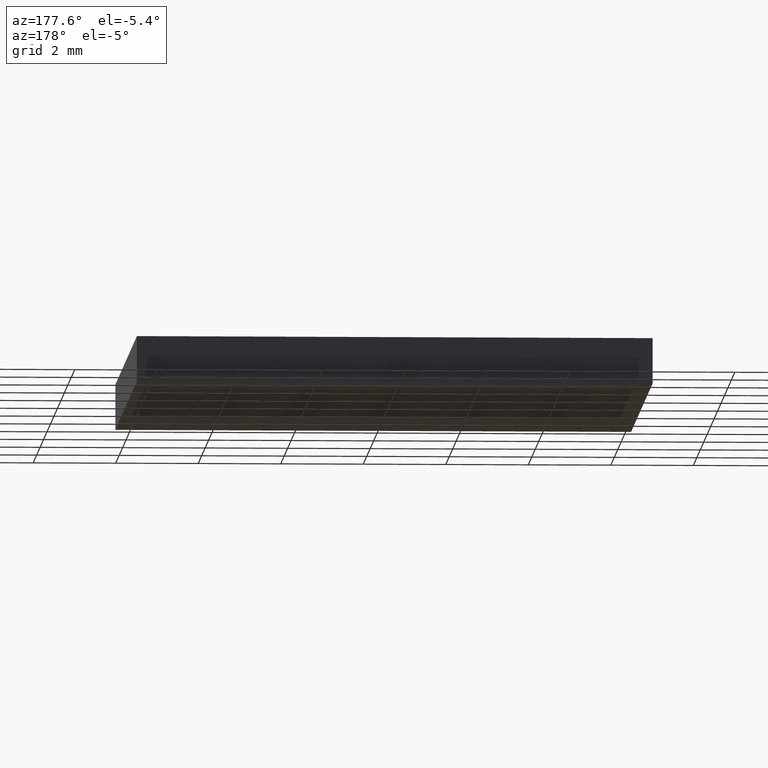
[diagram: clean part render]
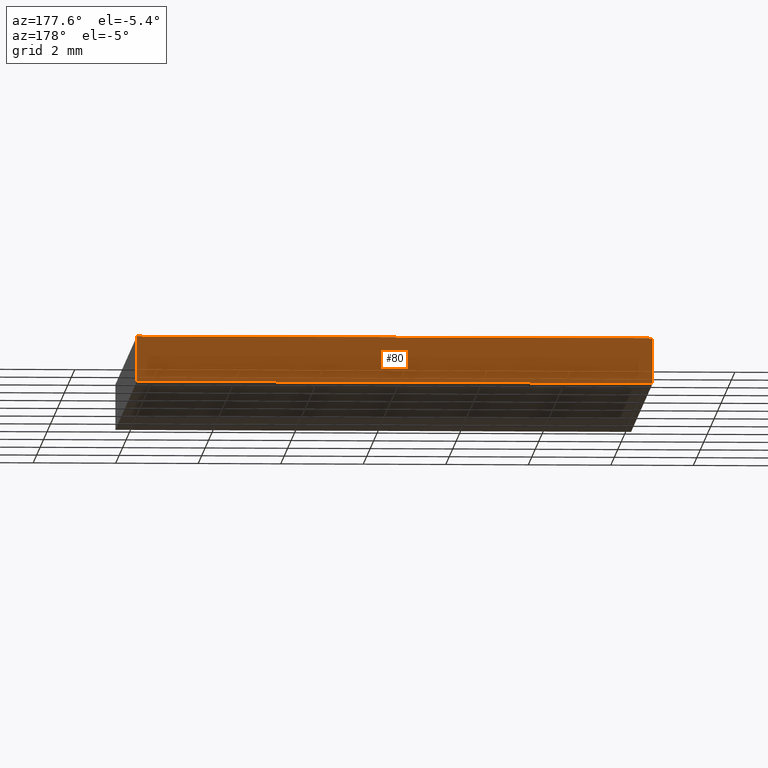
[diagram: same view with one face highlighted and labeled with its STEP entity id]
A machine part, auxiliary view. The second image highlights one B-rep face of the part: STEP entity #80.
In plain terms, the highlighted planar face has unit normal (0, -1, 0).
Its self-contained STEP definition (entity closure, byte-faithful):
#3 = AXIS2_PLACEMENT_3D ( 'NONE', #179, #279, #209 ) ;
#25 = LINE ( 'NONE', #102, #214 ) ;
#36 = CARTESIAN_POINT ( 'NONE',  ( -6.249999999999998200, 6.250000000000000900, 0.0000000000000000000 ) ) ;
#45 = EDGE_CURVE ( 'NONE', #91, #224, #117, .T. ) ;
#51 = CARTESIAN_POINT ( 'NONE',  ( -6.249999999999998200, 6.250000000000000900, 1.100000000000000100 ) ) ;
#57 = DIRECTION ( 'NONE',  ( -0.0000000000000000000, -0.0000000000000000000, -1.000000000000000000 ) ) ;
#62 = VECTOR ( 'NONE', #57, 1000.000000000000000 ) ;
#63 = EDGE_CURVE ( 'NONE', #224, #133, #25, .T. ) ;
#70 = VERTEX_POINT ( 'NONE', #51 ) ;
#80 = ADVANCED_FACE ( 'NONE', ( #136 ), #204, .F. ) ;
#82 = ORIENTED_EDGE ( 'NONE', *, *, #45, .T. ) ;
#87 = CARTESIAN_POINT ( 'NONE',  ( -6.249999999999998200, 6.250000000000000900, 1.100000000000000100 ) ) ;
#88 = VECTOR ( 'NONE', #150, 1000.000000000000000 ) ;
#91 = VERTEX_POINT ( 'NONE', #127 ) ;
#102 = CARTESIAN_POINT ( 'NONE',  ( -6.249999999999998200, 6.250000000000000900, 0.0000000000000000000 ) ) ;
#117 = LINE ( 'NONE', #202, #88 ) ;
#127 = CARTESIAN_POINT ( 'NONE',  ( 6.250000000000001800, 6.250000000000000900, 1.100000000000000100 ) ) ;
#133 = VERTEX_POINT ( 'NONE', #36 ) ;
#136 = FACE_OUTER_BOUND ( 'NONE', #313, .T. ) ;
#150 = DIRECTION ( 'NONE',  ( -0.0000000000000000000, -0.0000000000000000000, -1.000000000000000000 ) ) ;
#155 = VECTOR ( 'NONE', #282, 1000.000000000000000 ) ;
#157 = CARTESIAN_POINT ( 'NONE',  ( -6.249999999999998200, 6.250000000000000900, 1.100000000000000100 ) ) ;
#161 = ORIENTED_EDGE ( 'NONE', *, *, #238, .F. ) ;
#168 = LINE ( 'NONE', #87, #155 ) ;
#177 = EDGE_CURVE ( 'NONE', #91, #70, #168, .T. ) ;
#179 = CARTESIAN_POINT ( 'NONE',  ( -6.249999999999998200, 6.250000000000000900, 1.100000000000000100 ) ) ;
#180 = CARTESIAN_POINT ( 'NONE',  ( 6.250000000000001800, 6.250000000000000900, 0.0000000000000000000 ) ) ;
#202 = CARTESIAN_POINT ( 'NONE',  ( 6.250000000000001800, 6.250000000000000900, 1.100000000000000100 ) ) ;
#204 = PLANE ( 'NONE',  #3 ) ;
#205 = DIRECTION ( 'NONE',  ( -1.000000000000000000, -0.0000000000000000000, -0.0000000000000000000 ) ) ;
#206 = LINE ( 'NONE', #157, #62 ) ;
#209 = DIRECTION ( 'NONE',  ( 0.0000000000000000000, -0.0000000000000000000, -1.000000000000000000 ) ) ;
#214 = VECTOR ( 'NONE', #205, 1000.000000000000000 ) ;
#224 = VERTEX_POINT ( 'NONE', #180 ) ;
#238 = EDGE_CURVE ( 'NONE', #70, #133, #206, .T. ) ;
#279 = DIRECTION ( 'NONE',  ( 0.0000000000000000000, -1.000000000000000000, 0.0000000000000000000 ) ) ;
#282 = DIRECTION ( 'NONE',  ( -1.000000000000000000, -0.0000000000000000000, -0.0000000000000000000 ) ) ;
#293 = ORIENTED_EDGE ( 'NONE', *, *, #177, .F. ) ;
#296 = ORIENTED_EDGE ( 'NONE', *, *, #63, .T. ) ;
#313 = EDGE_LOOP ( 'NONE', ( #296, #161, #293, #82 ) ) ;